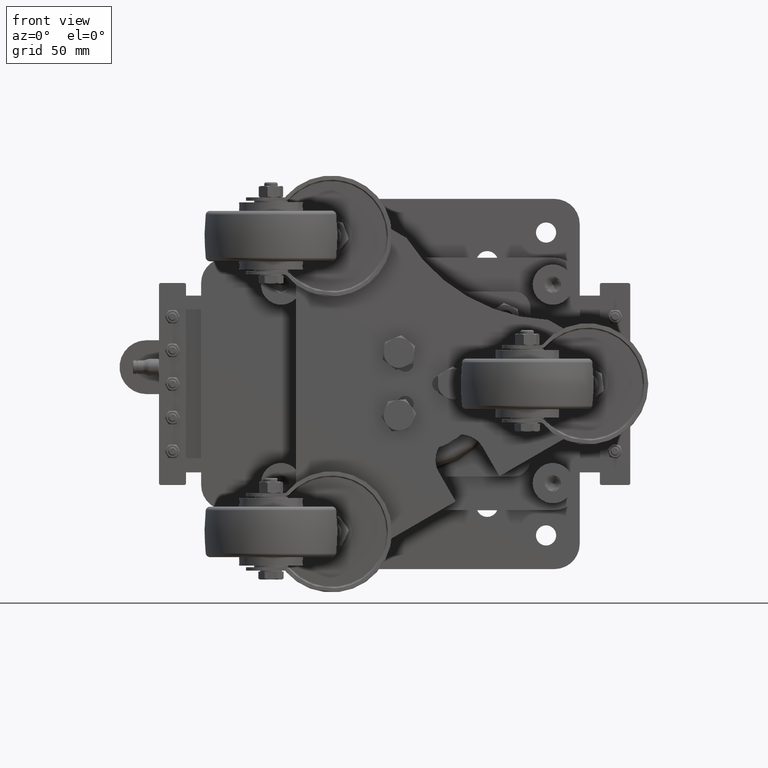
[diagram: clean part render]
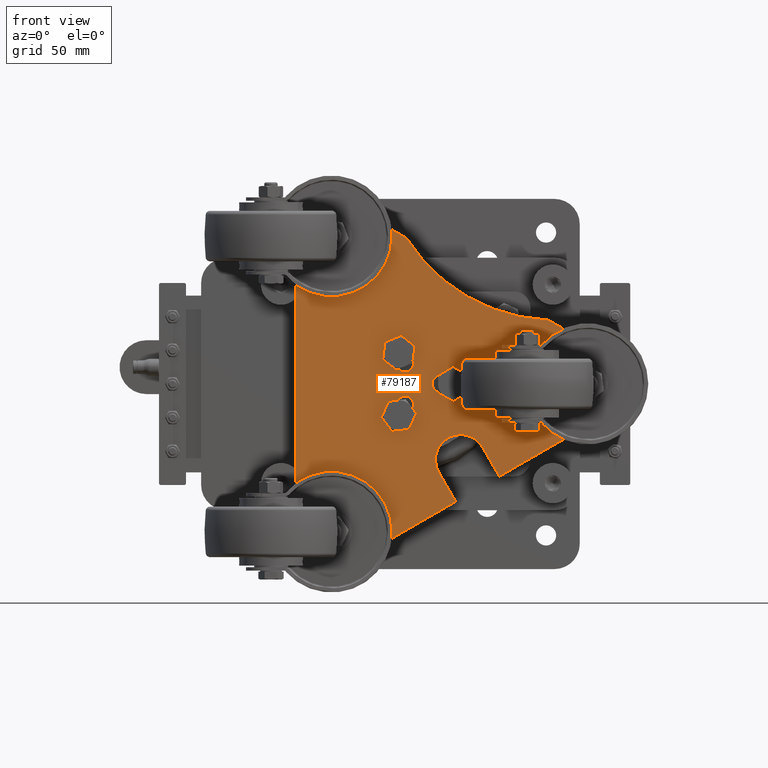
[diagram: same view with one face highlighted and labeled with its STEP entity id]
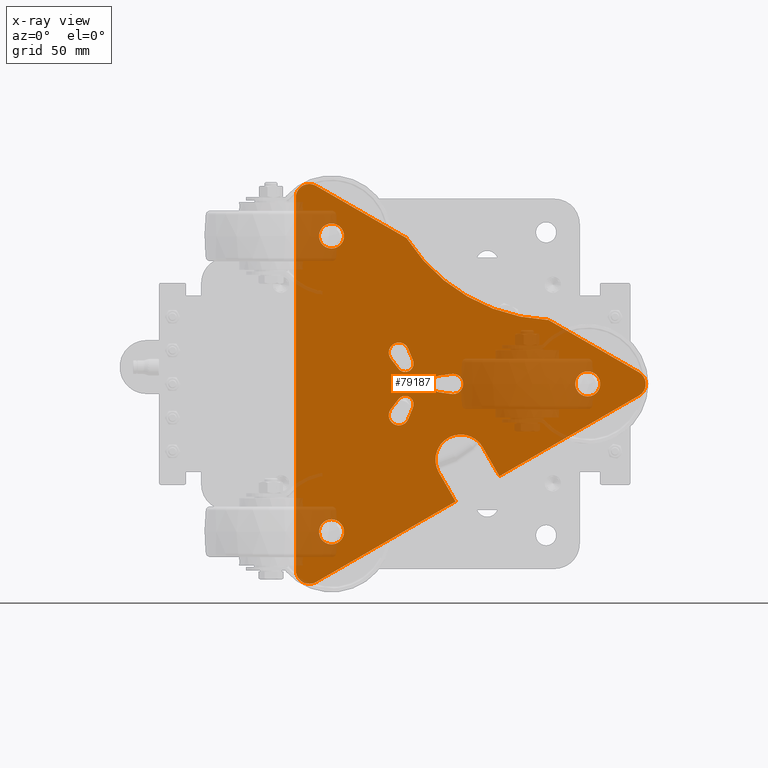
[diagram: x-ray of the same camera — body ghosted, the highlighted face saturated]
A machine part, front view. The second image highlights one B-rep face of the part: STEP entity #79187.
The next image is the same camera in x-ray: the body ghosted, the highlighted face saturated — about 18% of this face is hidden behind the body in this view.
In plain terms, the highlighted planar face has unit normal (0, -1, 0).
Its self-contained STEP definition (entity closure, byte-faithful):
#935 = EDGE_CURVE ( 'NONE', #26748, #115552, #35447, .T. ) ;
#1041 = ORIENTED_EDGE ( 'NONE', *, *, #27633, .T. ) ;
#1310 = EDGE_CURVE ( 'NONE', #3926, #15182, #39911, .T. ) ;
#1317 = VECTOR ( 'NONE', #66118, 1000.000000000000000 ) ;
#1602 = CARTESIAN_POINT ( 'NONE',  ( -5.200242724166355579, -49.00000000000004263, 20.89993960780172344 ) ) ;
#1637 = CARTESIAN_POINT ( 'NONE',  ( -15.49975727583331420, -49.00000000000004263, 14.95351210887427840 ) ) ;
#1715 = EDGE_CURVE ( 'NONE', #103441, #30753, #102189, .T. ) ;
#2066 = CIRCLE ( 'NONE', #76651, 8.000000000000007105 ) ;
#2222 = DIRECTION ( 'NONE',  ( 0.0000000000000000000, 0.0000000000000000000, 1.000000000000000000 ) ) ;
#2570 = CARTESIAN_POINT ( 'NONE',  ( 13.00961894323307355, -49.00000000000003553, -52.53332099679067824 ) ) ;
#2992 = CARTESIAN_POINT ( 'NONE',  ( 20.70000000000025508, -49.00000000000003553, 5.946427498927556066 ) ) ;
#3066 = DIRECTION ( 'NONE',  ( -1.396386934935779284E-16, 1.000000000000000000, -4.930380657631323784E-32 ) ) ;
#3635 = CIRCLE ( 'NONE', #81167, 6.000000000000000000 ) ;
#3779 = CARTESIAN_POINT ( 'NONE',  ( -2.375202270138549121, -49.00000000000003553, 14.02468350834576150 ) ) ;
#3795 = EDGE_CURVE ( 'NONE', #40222, #97572, #22285, .T. ) ;
#3926 = VERTEX_POINT ( 'NONE', #45308 ) ;
#4012 = CARTESIAN_POINT ( 'NONE',  ( 48.99038105676643085, -49.00000000000002842, -54.85382907247941375 ) ) ;
#4091 = CARTESIAN_POINT ( 'NONE',  ( 101.5000000000002984, -49.00000000000002132, 7.440000000000138058 ) ) ;
#4795 = ORIENTED_EDGE ( 'NONE', *, *, #15781, .T. ) ;
#4803 = VERTEX_POINT ( 'NONE', #97327 ) ;
#6358 = CARTESIAN_POINT ( 'NONE',  ( 101.5000000000002984, -49.00000000000002132, -7.439999999999841407 ) ) ;
#7957 = ORIENTED_EDGE ( 'NONE', *, *, #115756, .T. ) ;
#8012 = AXIS2_PLACEMENT_3D ( 'NONE', #19329, #110320, #49450 ) ;
#9335 = CARTESIAN_POINT ( 'NONE',  ( 14.00000000000026468, -49.00000000000003553, 1.480561238629936100E-13 ) ) ;
#9660 = VERTEX_POINT ( 'NONE', #61014 ) ;
#9750 = EDGE_CURVE ( 'NONE', #46459, #120438, #48055, .T. ) ;
#9786 = AXIS2_PLACEMENT_3D ( 'NONE', #18899, #88908, #129161 ) ;
#10928 = EDGE_LOOP ( 'NONE', ( #53872, #117290 ) ) ;
#11357 = AXIS2_PLACEMENT_3D ( 'NONE', #9335, #129618, #59083 ) ;
#11637 = EDGE_LOOP ( 'NONE', ( #125278, #84795 ) ) ;
#12159 = CARTESIAN_POINT ( 'NONE',  ( 48.99038105676643085, -49.00000000000002842, -54.85382907247941375 ) ) ;
#12991 = CARTESIAN_POINT ( 'NONE',  ( -5.200242724166366237, -49.00000000000004263, -20.89993960780141791 ) ) ;
#13321 = VECTOR ( 'NONE', #70054, 1000.000000000000114 ) ;
#13625 = CARTESIAN_POINT ( 'NONE',  ( -72.00000000000027001, -49.00000000000004974, -110.8512516844077140 ) ) ;
#14723 = EDGE_CURVE ( 'NONE', #38836, #35823, #79465, .T. ) ;
#14930 = VERTEX_POINT ( 'NONE', #56593 ) ;
#15001 = DIRECTION ( 'NONE',  ( 0.0000000000000000000, 0.0000000000000000000, -1.000000000000000000 ) ) ;
#15088 = DIRECTION ( 'NONE',  ( -1.396386934935779284E-16, 1.000000000000000000, -4.930380657631323784E-32 ) ) ;
#15182 = VERTEX_POINT ( 'NONE', #113920 ) ;
#15299 = EDGE_CURVE ( 'NONE', #55290, #34352, #108859, .T. ) ;
#15301 = AXIS2_PLACEMENT_3D ( 'NONE', #80580, #62125, #2222 ) ;
#15595 = DIRECTION ( 'NONE',  ( 0.0000000000000000000, 0.0000000000000000000, -1.000000000000000000 ) ) ;
#15781 = EDGE_CURVE ( 'NONE', #27668, #26277, #53597, .T. ) ;
#16274 = ORIENTED_EDGE ( 'NONE', *, *, #51782, .F. ) ;
#16406 = ORIENTED_EDGE ( 'NONE', *, *, #26632, .T. ) ;
#16418 = VECTOR ( 'NONE', #120562, 1000.000000000000114 ) ;
#16780 = DIRECTION ( 'NONE',  ( 0.0000000000000000000, 0.0000000000000000000, -1.000000000000000000 ) ) ;
#17087 = VERTEX_POINT ( 'NONE', #74072 ) ;
#17640 = ORIENTED_EDGE ( 'NONE', *, *, #114801, .F. ) ;
#17765 = AXIS2_PLACEMENT_3D ( 'NONE', #27124, #37152, #127293 ) ;
#18459 = CIRCLE ( 'NONE', #15301, 8.000000000000007105 ) ;
#18548 = VERTEX_POINT ( 'NONE', #1637 ) ;
#18899 = CARTESIAN_POINT ( 'NONE',  ( 26.00000000000000711, -49.00000000000003553, -45.03332099679050060 ) ) ;
#19266 = VERTEX_POINT ( 'NONE', #45574 ) ;
#19270 = CARTESIAN_POINT ( 'NONE',  ( -60.00000000000029843, -49.00000000000004974, 117.7794549146835550 ) ) ;
#19324 = EDGE_CURVE ( 'NONE', #59069, #27668, #34686, .T. ) ;
#19329 = CARTESIAN_POINT ( 'NONE',  ( 82.49999999999994316, -49.00000000000002842, 142.8941916244327217 ) ) ;
#20420 = LINE ( 'NONE', #31582, #97134 ) ;
#20438 = EDGE_CURVE ( 'NONE', #108504, #128862, #45891, .T. ) ;
#20768 = ORIENTED_EDGE ( 'NONE', *, *, #45888, .T. ) ;
#21024 = CIRCLE ( 'NONE', #118225, 5.999999999999987566 ) ;
#21155 = LINE ( 'NONE', #70773, #69736 ) ;
#21325 = CARTESIAN_POINT ( 'NONE',  ( -50.75000000000018474, -49.00000000000004263, -87.90157848412013664 ) ) ;
#21497 = EDGE_CURVE ( 'NONE', #26277, #4803, #112556, .T. ) ;
#21545 = AXIS2_PLACEMENT_3D ( 'NONE', #104087, #86112, #125491 ) ;
#21722 = CIRCLE ( 'NONE', #122151, 5.000000000000023093 ) ;
#21835 = LINE ( 'NONE', #12991, #106384 ) ;
#22285 = CIRCLE ( 'NONE', #62424, 7.440000000000002167 ) ;
#26120 = VECTOR ( 'NONE', #92601, 1000.000000000000000 ) ;
#26277 = VERTEX_POINT ( 'NONE', #96326 ) ;
#26632 = EDGE_CURVE ( 'NONE', #30753, #59069, #84143, .T. ) ;
#26748 = VERTEX_POINT ( 'NONE', #65561 ) ;
#27124 = CARTESIAN_POINT ( 'NONE',  ( -10.74999999999982947, -49.00000000000004263, 18.61954618136553563 ) ) ;
#27633 = EDGE_CURVE ( 'NONE', #4803, #103441, #33813, .T. ) ;
#27668 = VERTEX_POINT ( 'NONE', #33189 ) ;
#28589 = ORIENTED_EDGE ( 'NONE', *, *, #935, .T. ) ;
#28916 = CARTESIAN_POINT ( 'NONE',  ( 128.0000000000002842, -49.00000000000002132, 1.480561238629936100E-13 ) ) ;
#29332 = EDGE_CURVE ( 'NONE', #97572, #40222, #55615, .T. ) ;
#29931 = FACE_BOUND ( 'NONE', #69841, .T. ) ;
#30164 = DIRECTION ( 'NONE',  ( 0.0000000000000000000, 0.0000000000000000000, 1.000000000000000000 ) ) ;
#30753 = VERTEX_POINT ( 'NONE', #50811 ) ;
#31582 = CARTESIAN_POINT ( 'NONE',  ( 13.00961894323307533, -49.00000000000003553, -52.53332099679067113 ) ) ;
#32746 = DIRECTION ( 'NONE',  ( 0.0000000000000000000, 0.0000000000000000000, -1.000000000000000000 ) ) ;
#32933 = DIRECTION ( 'NONE',  ( 0.6110056787485430574, 8.532003469760415462E-17, 0.7916262126389146392 ) ) ;
#33133 = CIRCLE ( 'NONE', #9786, 15.00000000000038725 ) ;
#33189 = CARTESIAN_POINT ( 'NONE',  ( 20.70000000000025508, -49.00000000000003553, -5.946427498927259414 ) ) ;
#33736 = CARTESIAN_POINT ( 'NONE',  ( 26.00000000000000711, -49.00000000000003553, -45.03332099679050060 ) ) ;
#33813 = LINE ( 'NONE', #2992, #85415 ) ;
#34352 = VERTEX_POINT ( 'NONE', #92771 ) ;
#34402 = AXIS2_PLACEMENT_3D ( 'NONE', #47707, #126958, #57692 ) ;
#34686 = CIRCLE ( 'NONE', #34402, 6.000000000000006217 ) ;
#35447 = LINE ( 'NONE', #54222, #129347 ) ;
#35630 = EDGE_CURVE ( 'NONE', #35823, #63884, #33133, .T. ) ;
#35823 = VERTEX_POINT ( 'NONE', #101622 ) ;
#36199 = EDGE_CURVE ( 'NONE', #14930, #50432, #40656, .T. ) ;
#36775 = ORIENTED_EDGE ( 'NONE', *, *, #125569, .F. ) ;
#37152 = DIRECTION ( 'NONE',  ( -1.396386934935779284E-16, 1.000000000000000000, -4.930380657631323784E-32 ) ) ;
#37255 = VERTEX_POINT ( 'NONE', #2570 ) ;
#37531 = VECTOR ( 'NONE', #109416, 1000.000000000000114 ) ;
#38836 = VERTEX_POINT ( 'NONE', #4012 ) ;
#39380 = DIRECTION ( 'NONE',  ( 0.0000000000000000000, 0.0000000000000000000, 1.000000000000000000 ) ) ;
#39655 = CARTESIAN_POINT ( 'NONE',  ( 132.0000000000002558, -49.00000000000002132, -6.928203230275360447 ) ) ;
#39911 = CIRCLE ( 'NONE', #42690, 7.439999999999987956 ) ;
#40222 = VERTEX_POINT ( 'NONE', #43336 ) ;
#40231 = CARTESIAN_POINT ( 'NONE',  ( -50.75000000000017053, -49.00000000000004263, 87.90157848412046349 ) ) ;
#40656 = LINE ( 'NONE', #19270, #37531 ) ;
#41040 = EDGE_LOOP ( 'NONE', ( #54424, #106931 ) ) ;
#41957 = DIRECTION ( 'NONE',  ( 1.396386934935779284E-16, -1.000000000000000000, 4.930380657631323784E-32 ) ) ;
#42327 = DIRECTION ( 'NONE',  ( -0.4999999999999740208, -6.981934674678600596E-17, 0.8660254037844536956 ) ) ;
#42690 = AXIS2_PLACEMENT_3D ( 'NONE', #40231, #41957, #123339 ) ;
#43336 = CARTESIAN_POINT ( 'NONE',  ( -50.75000000000018474, -49.00000000000004263, -95.34157848412013436 ) ) ;
#43380 = CARTESIAN_POINT ( 'NONE',  ( -72.00000000000028422, -49.00000000000004974, 110.8512516844080409 ) ) ;
#43597 = DIRECTION ( 'NONE',  ( 0.0000000000000000000, 0.0000000000000000000, -1.000000000000000000 ) ) ;
#43767 = DIRECTION ( 'NONE',  ( 0.0000000000000000000, 0.0000000000000000000, -1.000000000000000000 ) ) ;
#43822 = EDGE_CURVE ( 'NONE', #34352, #17087, #21835, .T. ) ;
#43852 = AXIS2_PLACEMENT_3D ( 'NONE', #33736, #103728, #43767 ) ;
#43938 = VERTEX_POINT ( 'NONE', #114449 ) ;
#45308 = CARTESIAN_POINT ( 'NONE',  ( -50.75000000000017053, -49.00000000000004263, 80.46157848412046576 ) ) ;
#45574 = CARTESIAN_POINT ( 'NONE',  ( -10.95813106319439179, -49.00000000000004263, 9.069327259239527095 ) ) ;
#45888 = EDGE_CURVE ( 'NONE', #18548, #9660, #3635, .T. ) ;
#45891 = CIRCLE ( 'NONE', #83190, 7.999999999999988454 ) ;
#46180 = CIRCLE ( 'NONE', #121751, 5.000000000000013323 ) ;
#46459 = VERTEX_POINT ( 'NONE', #6358 ) ;
#46677 = LINE ( 'NONE', #55914, #1317 ) ;
#47707 = CARTESIAN_POINT ( 'NONE',  ( 21.50000000000026290, -49.00000000000003553, 1.480561238629936100E-13 ) ) ;
#48055 = CIRCLE ( 'NONE', #111332, 7.439999999999991509 ) ;
#48380 = EDGE_CURVE ( 'NONE', #73102, #108504, #66516, .T. ) ;
#48880 = ORIENTED_EDGE ( 'NONE', *, *, #116720, .T. ) ;
#49450 = DIRECTION ( 'NONE',  ( 0.0000000000000000000, 0.0000000000000000000, -1.000000000000000000 ) ) ;
#49489 = LINE ( 'NONE', #3779, #26120 ) ;
#50432 = VERTEX_POINT ( 'NONE', #60524 ) ;
#50646 = DIRECTION ( 'NONE',  ( 1.396386934935779284E-16, -1.000000000000000000, 4.930380657631323784E-32 ) ) ;
#50811 = CARTESIAN_POINT ( 'NONE',  ( 21.50000000000026290, -49.00000000000003553, 6.000000000000152767 ) ) ;
#50854 = DIRECTION ( 'NONE',  ( 0.0000000000000000000, 0.0000000000000000000, -1.000000000000000000 ) ) ;
#51702 = FACE_BOUND ( 'NONE', #41040, .T. ) ;
#51782 = EDGE_CURVE ( 'NONE', #128862, #38836, #124773, .T. ) ;
#52678 = DIRECTION ( 'NONE',  ( 1.396386934935779284E-16, -1.000000000000000000, 4.930380657631323784E-32 ) ) ;
#52814 = CARTESIAN_POINT ( 'NONE',  ( -6.999999999999798383, -49.00000000000004263, 12.12435565298225981 ) ) ;
#52844 = PLANE ( 'NONE',  #43852 ) ;
#53455 = DIRECTION ( 'NONE',  ( 1.396386934935779284E-16, -1.000000000000000000, 4.930380657631323784E-32 ) ) ;
#53597 = LINE ( 'NONE', #127597, #100663 ) ;
#53872 = ORIENTED_EDGE ( 'NONE', *, *, #79496, .F. ) ;
#54222 = CARTESIAN_POINT ( 'NONE',  ( -10.95813106319438113, -49.00000000000004263, -9.069327259239235772 ) ) ;
#54424 = ORIENTED_EDGE ( 'NONE', *, *, #29332, .F. ) ;
#55290 = VERTEX_POINT ( 'NONE', #57315 ) ;
#55615 = CIRCLE ( 'NONE', #114268, 7.440000000000002167 ) ;
#55873 = CARTESIAN_POINT ( 'NONE',  ( -64.00000000000028422, -49.00000000000004974, 118.8512516844080551 ) ) ;
#55914 = CARTESIAN_POINT ( 'NONE',  ( -15.49975727583331953, -49.00000000000004263, 14.95351210887427484 ) ) ;
#56593 = CARTESIAN_POINT ( 'NONE',  ( -60.00000000000029843, -49.00000000000004974, 117.7794549146835550 ) ) ;
#57315 = CARTESIAN_POINT ( 'NONE',  ( -6.999999999999800160, -49.00000000000004263, -7.124355652981948950 ) ) ;
#57692 = DIRECTION ( 'NONE',  ( 0.0000000000000000000, 0.0000000000000000000, -1.000000000000000000 ) ) ;
#58545 = EDGE_CURVE ( 'NONE', #15182, #3926, #92199, .T. ) ;
#58750 = EDGE_LOOP ( 'NONE', ( #80201, #16406, #105087, #4795, #108539, #1041 ) ) ;
#59001 = VECTOR ( 'NONE', #42327, 999.9999999999998863 ) ;
#59069 = VERTEX_POINT ( 'NONE', #83315 ) ;
#59083 = DIRECTION ( 'NONE',  ( 0.0000000000000000000, 0.0000000000000000000, -1.000000000000000000 ) ) ;
#59264 = ORIENTED_EDGE ( 'NONE', *, *, #36199, .F. ) ;
#59974 = CARTESIAN_POINT ( 'NONE',  ( -2.375202270138549121, -49.00000000000003553, 14.02468350834576150 ) ) ;
#60250 = AXIS2_PLACEMENT_3D ( 'NONE', #101332, #121043, #43597 ) ;
#60306 = CARTESIAN_POINT ( 'NONE',  ( -64.00000000000028422, -49.00000000000004974, 110.8512516844080409 ) ) ;
#60470 = EDGE_CURVE ( 'NONE', #63884, #37255, #107603, .T. ) ;
#60524 = CARTESIAN_POINT ( 'NONE',  ( -6.213741838408668450, -49.00000000000004263, 86.72594428638609543 ) ) ;
#60950 = DIRECTION ( 'NONE',  ( 1.396386934935779284E-16, -1.000000000000000000, 4.930380657631323784E-32 ) ) ;
#61014 = CARTESIAN_POINT ( 'NONE',  ( -10.74999999999982947, -49.00000000000004263, 24.61954618136553208 ) ) ;
#62125 = DIRECTION ( 'NONE',  ( -1.396386934935779284E-16, 1.000000000000000000, -4.930380657631323784E-32 ) ) ;
#62424 = AXIS2_PLACEMENT_3D ( 'NONE', #21325, #52678, #81695 ) ;
#62766 = CARTESIAN_POINT ( 'NONE',  ( 101.5000000000002984, -49.00000000000002132, 1.480561238629936100E-13 ) ) ;
#63355 = DIRECTION ( 'NONE',  ( 0.0000000000000000000, 0.0000000000000000000, -1.000000000000000000 ) ) ;
#63721 = ORIENTED_EDGE ( 'NONE', *, *, #90829, .F. ) ;
#63884 = VERTEX_POINT ( 'NONE', #127008 ) ;
#64334 = FACE_BOUND ( 'NONE', #58750, .T. ) ;
#64872 = DIRECTION ( 'NONE',  ( -1.396386934935779284E-16, 1.000000000000000000, -4.930380657631323784E-32 ) ) ;
#65561 = CARTESIAN_POINT ( 'NONE',  ( -15.49975727583330709, -49.00000000000004263, -14.95351210887398175 ) ) ;
#66118 = DIRECTION ( 'NONE',  ( -0.6110056787485430574, -8.532003469760415462E-17, 0.7916262126389146392 ) ) ;
#66516 = LINE ( 'NONE', #99805, #13321 ) ;
#69322 = ORIENTED_EDGE ( 'NONE', *, *, #74358, .F. ) ;
#69476 = ORIENTED_EDGE ( 'NONE', *, *, #103646, .T. ) ;
#69505 = DIRECTION ( 'NONE',  ( -6.259644161404848197E-17, -8.740885324332845437E-33, 1.000000000000000000 ) ) ;
#69557 = DIRECTION ( 'NONE',  ( 0.0000000000000000000, 0.0000000000000000000, -1.000000000000000000 ) ) ;
#69736 = VECTOR ( 'NONE', #69505, 1000.000000000000000 ) ;
#69841 = EDGE_LOOP ( 'NONE', ( #112924, #107933, #111303, #48880, #28589 ) ) ;
#70054 = DIRECTION ( 'NONE',  ( 0.8660254037844395958, 1.209306559167085651E-16, -0.4999999999999983347 ) ) ;
#70681 = AXIS2_PLACEMENT_3D ( 'NONE', #80052, #50646, #69557 ) ;
#70773 = CARTESIAN_POINT ( 'NONE',  ( -72.00000000000027001, -49.00000000000004974, -110.8512516844077140 ) ) ;
#71701 = ORIENTED_EDGE ( 'NONE', *, *, #20438, .F. ) ;
#72828 = DIRECTION ( 'NONE',  ( 0.0000000000000000000, 0.0000000000000000000, -1.000000000000000000 ) ) ;
#73102 = VERTEX_POINT ( 'NONE', #112886 ) ;
#73829 = AXIS2_PLACEMENT_3D ( 'NONE', #121603, #92717, #32746 ) ;
#74072 = CARTESIAN_POINT ( 'NONE',  ( -5.200242724166362684, -49.00000000000004263, -20.89993960780142146 ) ) ;
#74358 = EDGE_CURVE ( 'NONE', #93477, #76233, #21155, .T. ) ;
#75015 = CARTESIAN_POINT ( 'NONE',  ( -10.74999999999983125, -49.00000000000004263, -18.61954618136523010 ) ) ;
#75182 = ORIENTED_EDGE ( 'NONE', *, *, #93913, .T. ) ;
#76233 = VERTEX_POINT ( 'NONE', #43380 ) ;
#76404 = CARTESIAN_POINT ( 'NONE',  ( -60.00000000000031974, -49.00000000000004974, -117.7794549146832139 ) ) ;
#76651 = AXIS2_PLACEMENT_3D ( 'NONE', #60306, #99331, #129531 ) ;
#79187 = ADVANCED_FACE ( 'NONE', ( #117581, #51702, #89461, #64334, #29931, #123862, #106723 ), #52844, .T. ) ;
#79249 = DIRECTION ( 'NONE',  ( -1.396386934935779284E-16, 1.000000000000000000, -4.930380657631323784E-32 ) ) ;
#79462 = CIRCLE ( 'NONE', #83248, 7.999999999999979572 ) ;
#79465 = LINE ( 'NONE', #12159, #59001 ) ;
#79496 = EDGE_CURVE ( 'NONE', #120438, #46459, #89715, .T. ) ;
#80052 = CARTESIAN_POINT ( 'NONE',  ( 101.5000000000002984, -49.00000000000002132, 1.480561238629936100E-13 ) ) ;
#80114 = CARTESIAN_POINT ( 'NONE',  ( -64.00000000000029843, -49.00000000000004974, -110.8512516844077140 ) ) ;
#80201 = ORIENTED_EDGE ( 'NONE', *, *, #1715, .T. ) ;
#80580 = CARTESIAN_POINT ( 'NONE',  ( -64.00000000000028422, -49.00000000000004974, 110.8512516844080409 ) ) ;
#81093 = CARTESIAN_POINT ( 'NONE',  ( -10.95813106319438113, -49.00000000000004263, -9.069327259239235772 ) ) ;
#81167 = AXIS2_PLACEMENT_3D ( 'NONE', #104271, #64872, #15001 ) ;
#81695 = DIRECTION ( 'NONE',  ( 0.0000000000000000000, 0.0000000000000000000, -1.000000000000000000 ) ) ;
#83068 = DIRECTION ( 'NONE',  ( 0.0000000000000000000, 0.0000000000000000000, -1.000000000000000000 ) ) ;
#83190 = AXIS2_PLACEMENT_3D ( 'NONE', #28916, #119484, #30164 ) ;
#83248 = AXIS2_PLACEMENT_3D ( 'NONE', #80114, #79249, #39380 ) ;
#83315 = CARTESIAN_POINT ( 'NONE',  ( 21.50000000000026290, -49.00000000000003553, -5.999999999999856115 ) ) ;
#83359 = DIRECTION ( 'NONE',  ( -0.3800655710726995595, -5.307185978648285504E-17, -0.9249595459722456114 ) ) ;
#83368 = VERTEX_POINT ( 'NONE', #59974 ) ;
#84143 = CIRCLE ( 'NONE', #117144, 6.000000000000006217 ) ;
#84795 = ORIENTED_EDGE ( 'NONE', *, *, #1310, .F. ) ;
#85415 = VECTOR ( 'NONE', #114093, 1000.000000000000114 ) ;
#85911 = DIRECTION ( 'NONE',  ( -1.396386934935779284E-16, 1.000000000000000000, -4.930380657631323784E-32 ) ) ;
#86112 = DIRECTION ( 'NONE',  ( 1.396386934935779284E-16, -1.000000000000000000, 4.930380657631323784E-32 ) ) ;
#86173 = CARTESIAN_POINT ( 'NONE',  ( -50.75000000000018474, -49.00000000000004263, -80.46157848412015312 ) ) ;
#86481 = EDGE_CURVE ( 'NONE', #9660, #104348, #99057, .T. ) ;
#87217 = AXIS2_PLACEMENT_3D ( 'NONE', #103003, #85911, #16780 ) ;
#87561 = EDGE_CURVE ( 'NONE', #114631, #93477, #79462, .T. ) ;
#88634 = DIRECTION ( 'NONE',  ( -0.9910712498212336241, -1.383918944840857524E-16, 0.1333333333333338588 ) ) ;
#88755 = VECTOR ( 'NONE', #96823, 1000.000000000000114 ) ;
#88908 = DIRECTION ( 'NONE',  ( 1.396386934935779284E-16, -1.000000000000000000, 4.930380657631323784E-32 ) ) ;
#89461 = FACE_BOUND ( 'NONE', #11637, .T. ) ;
#89715 = CIRCLE ( 'NONE', #70681, 7.439999999999991509 ) ;
#90829 = EDGE_CURVE ( 'NONE', #76233, #113143, #18459, .T. ) ;
#91650 = CARTESIAN_POINT ( 'NONE',  ( -50.75000000000018474, -49.00000000000004263, -87.90157848412013664 ) ) ;
#92199 = CIRCLE ( 'NONE', #21545, 7.439999999999987956 ) ;
#92601 = DIRECTION ( 'NONE',  ( 0.3800655710726988934, 5.307185978648276259E-17, -0.9249595459722459445 ) ) ;
#92717 = DIRECTION ( 'NONE',  ( 1.396386934935779284E-16, -1.000000000000000000, 4.930380657631323784E-32 ) ) ;
#92736 = CIRCLE ( 'NONE', #8012, 104.9999999999990337 ) ;
#92771 = CARTESIAN_POINT ( 'NONE',  ( -2.375202270138556671, -49.00000000000003553, -14.02468350834546484 ) ) ;
#93477 = VERTEX_POINT ( 'NONE', #13625 ) ;
#93913 = EDGE_CURVE ( 'NONE', #104348, #83368, #49489, .T. ) ;
#94795 = CARTESIAN_POINT ( 'NONE',  ( -6.999999999999800160, -49.00000000000004263, -12.12435565298196138 ) ) ;
#94922 = ORIENTED_EDGE ( 'NONE', *, *, #97178, .F. ) ;
#96088 = DIRECTION ( 'NONE',  ( -1.396386934935779284E-16, 1.000000000000000000, -4.930380657631323784E-32 ) ) ;
#96255 = EDGE_LOOP ( 'NONE', ( #69476, #7957, #20768, #99556, #75182 ) ) ;
#96326 = CARTESIAN_POINT ( 'NONE',  ( 13.33333333333358972, -49.00000000000003553, -4.955356249106016797 ) ) ;
#96823 = DIRECTION ( 'NONE',  ( -0.8660254037844398178, -1.209306559167085897E-16, -0.4999999999999978906 ) ) ;
#97134 = VECTOR ( 'NONE', #121299, 1000.000000000000000 ) ;
#97178 = EDGE_CURVE ( 'NONE', #50432, #73102, #92736, .T. ) ;
#97327 = CARTESIAN_POINT ( 'NONE',  ( 13.33333333333359505, -49.00000000000003553, 4.955356249106317890 ) ) ;
#97572 = VERTEX_POINT ( 'NONE', #86173 ) ;
#97915 = ORIENTED_EDGE ( 'NONE', *, *, #35630, .F. ) ;
#99057 = CIRCLE ( 'NONE', #17765, 6.000000000000000000 ) ;
#99331 = DIRECTION ( 'NONE',  ( -1.396386934935779284E-16, 1.000000000000000000, -4.930380657631323784E-32 ) ) ;
#99556 = ORIENTED_EDGE ( 'NONE', *, *, #86481, .T. ) ;
#99805 = CARTESIAN_POINT ( 'NONE',  ( 78.21374183840868000, -49.00000000000002842, 37.98171385857312998 ) ) ;
#100663 = VECTOR ( 'NONE', #88634, 1000.000000000000114 ) ;
#101332 = CARTESIAN_POINT ( 'NONE',  ( 21.50000000000026290, -49.00000000000003553, 1.480561238629936100E-13 ) ) ;
#101622 = CARTESIAN_POINT ( 'NONE',  ( 38.99038105676692822, -49.00000000000003553, -37.53332099679030165 ) ) ;
#101737 = EDGE_CURVE ( 'NONE', #115552, #55290, #46180, .T. ) ;
#102189 = CIRCLE ( 'NONE', #60250, 6.000000000000006217 ) ;
#103003 = CARTESIAN_POINT ( 'NONE',  ( -6.999999999999800160, -49.00000000000004263, -12.12435565298196138 ) ) ;
#103157 = CARTESIAN_POINT ( 'NONE',  ( 132.0000000000002558, -49.00000000000002132, 6.928203230275665092 ) ) ;
#103441 = VERTEX_POINT ( 'NONE', #129556 ) ;
#103646 = EDGE_CURVE ( 'NONE', #83368, #19266, #21722, .T. ) ;
#103728 = DIRECTION ( 'NONE',  ( 1.396386934935779284E-16, -1.000000000000000000, 0.0000000000000000000 ) ) ;
#104087 = CARTESIAN_POINT ( 'NONE',  ( -50.75000000000017053, -49.00000000000004263, 87.90157848412046349 ) ) ;
#104271 = CARTESIAN_POINT ( 'NONE',  ( -10.74999999999982947, -49.00000000000004263, 18.61954618136553563 ) ) ;
#104348 = VERTEX_POINT ( 'NONE', #1602 ) ;
#105087 = ORIENTED_EDGE ( 'NONE', *, *, #19324, .T. ) ;
#106384 = VECTOR ( 'NONE', #83359, 1000.000000000000000 ) ;
#106723 = FACE_OUTER_BOUND ( 'NONE', #111556, .T. ) ;
#106931 = ORIENTED_EDGE ( 'NONE', *, *, #3795, .F. ) ;
#107603 = CIRCLE ( 'NONE', #73829, 15.00000000000038725 ) ;
#107933 = ORIENTED_EDGE ( 'NONE', *, *, #15299, .T. ) ;
#108189 = CARTESIAN_POINT ( 'NONE',  ( 132.0000000000002558, -49.00000000000002132, -6.928203230275352453 ) ) ;
#108308 = CARTESIAN_POINT ( 'NONE',  ( 23.00961894323303625, -49.00000000000003553, -69.85382907247947060 ) ) ;
#108504 = VERTEX_POINT ( 'NONE', #103157 ) ;
#108539 = ORIENTED_EDGE ( 'NONE', *, *, #21497, .T. ) ;
#108859 = CIRCLE ( 'NONE', #87217, 5.000000000000013323 ) ;
#109416 = DIRECTION ( 'NONE',  ( 0.8660254037844398178, 1.209306559167085897E-16, -0.4999999999999977796 ) ) ;
#109819 = ORIENTED_EDGE ( 'NONE', *, *, #14723, .F. ) ;
#110320 = DIRECTION ( 'NONE',  ( 1.396386934935779284E-16, -1.000000000000000000, 4.930380657631323784E-32 ) ) ;
#111303 = ORIENTED_EDGE ( 'NONE', *, *, #43822, .T. ) ;
#111332 = AXIS2_PLACEMENT_3D ( 'NONE', #62766, #53455, #72828 ) ;
#111556 = EDGE_LOOP ( 'NONE', ( #16274, #71701, #115001, #94922, #59264, #113776, #63721, #69322, #118589, #17640, #36775, #121509, #97915, #109819 ) ) ;
#112556 = CIRCLE ( 'NONE', #11357, 5.000000000000001776 ) ;
#112886 = CARTESIAN_POINT ( 'NONE',  ( 78.21374183840862315, -49.00000000000002842, 37.98171385857311577 ) ) ;
#112924 = ORIENTED_EDGE ( 'NONE', *, *, #101737, .T. ) ;
#113143 = VERTEX_POINT ( 'NONE', #55873 ) ;
#113267 = CARTESIAN_POINT ( 'NONE',  ( 21.50000000000026290, -49.00000000000003553, 1.480561238629936100E-13 ) ) ;
#113776 = ORIENTED_EDGE ( 'NONE', *, *, #123406, .F. ) ;
#113920 = CARTESIAN_POINT ( 'NONE',  ( -50.75000000000017053, -49.00000000000004263, 95.34157848412044700 ) ) ;
#114093 = DIRECTION ( 'NONE',  ( 0.9910712498212336241, 1.383918944840857524E-16, 0.1333333333333338588 ) ) ;
#114268 = AXIS2_PLACEMENT_3D ( 'NONE', #91650, #60950, #50854 ) ;
#114449 = CARTESIAN_POINT ( 'NONE',  ( 23.00961894323303625, -49.00000000000003553, -69.85382907247947060 ) ) ;
#114631 = VERTEX_POINT ( 'NONE', #76404 ) ;
#114801 = EDGE_CURVE ( 'NONE', #43938, #114631, #119717, .T. ) ;
#115001 = ORIENTED_EDGE ( 'NONE', *, *, #48380, .F. ) ;
#115552 = VERTEX_POINT ( 'NONE', #81093 ) ;
#115756 = EDGE_CURVE ( 'NONE', #19266, #18548, #46677, .T. ) ;
#116131 = DIRECTION ( 'NONE',  ( 0.0000000000000000000, 0.0000000000000000000, -1.000000000000000000 ) ) ;
#116720 = EDGE_CURVE ( 'NONE', #17087, #26748, #21024, .T. ) ;
#117144 = AXIS2_PLACEMENT_3D ( 'NONE', #113267, #123314, #63355 ) ;
#117290 = ORIENTED_EDGE ( 'NONE', *, *, #9750, .F. ) ;
#117581 = FACE_BOUND ( 'NONE', #10928, .T. ) ;
#118225 = AXIS2_PLACEMENT_3D ( 'NONE', #75015, #15088, #116131 ) ;
#118589 = ORIENTED_EDGE ( 'NONE', *, *, #87561, .F. ) ;
#119484 = DIRECTION ( 'NONE',  ( -1.396386934935779284E-16, 1.000000000000000000, -4.930380657631323784E-32 ) ) ;
#119717 = LINE ( 'NONE', #108308, #16418 ) ;
#120438 = VERTEX_POINT ( 'NONE', #4091 ) ;
#120562 = DIRECTION ( 'NONE',  ( -0.8660254037844399289, -1.209306559167086144E-16, -0.4999999999999976130 ) ) ;
#121043 = DIRECTION ( 'NONE',  ( -1.396386934935779284E-16, 1.000000000000000000, -4.930380657631323784E-32 ) ) ;
#121299 = DIRECTION ( 'NONE',  ( 0.4999999999999977240, 6.981934674678930932E-17, -0.8660254037844399289 ) ) ;
#121509 = ORIENTED_EDGE ( 'NONE', *, *, #60470, .F. ) ;
#121603 = CARTESIAN_POINT ( 'NONE',  ( 26.00000000000000711, -49.00000000000003553, -45.03332099679050060 ) ) ;
#121751 = AXIS2_PLACEMENT_3D ( 'NONE', #94795, #96088, #15595 ) ;
#122151 = AXIS2_PLACEMENT_3D ( 'NONE', #52814, #3066, #83068 ) ;
#123314 = DIRECTION ( 'NONE',  ( -1.396386934935779284E-16, 1.000000000000000000, -4.930380657631323784E-32 ) ) ;
#123339 = DIRECTION ( 'NONE',  ( 0.0000000000000000000, 0.0000000000000000000, -1.000000000000000000 ) ) ;
#123406 = EDGE_CURVE ( 'NONE', #113143, #14930, #2066, .T. ) ;
#123862 = FACE_BOUND ( 'NONE', #96255, .T. ) ;
#124773 = LINE ( 'NONE', #108189, #88755 ) ;
#125278 = ORIENTED_EDGE ( 'NONE', *, *, #58545, .F. ) ;
#125491 = DIRECTION ( 'NONE',  ( 0.0000000000000000000, 0.0000000000000000000, -1.000000000000000000 ) ) ;
#125569 = EDGE_CURVE ( 'NONE', #37255, #43938, #20420, .T. ) ;
#126958 = DIRECTION ( 'NONE',  ( -1.396386934935779284E-16, 1.000000000000000000, -4.930380657631323784E-32 ) ) ;
#127008 = CARTESIAN_POINT ( 'NONE',  ( 26.00000000000000711, -49.00000000000003553, -30.03332099679010980 ) ) ;
#127293 = DIRECTION ( 'NONE',  ( 0.0000000000000000000, 0.0000000000000000000, -1.000000000000000000 ) ) ;
#127597 = CARTESIAN_POINT ( 'NONE',  ( 13.33333333333359505, -49.00000000000003553, -4.955356249106021238 ) ) ;
#128862 = VERTEX_POINT ( 'NONE', #39655 ) ;
#129161 = DIRECTION ( 'NONE',  ( 0.0000000000000000000, 0.0000000000000000000, -1.000000000000000000 ) ) ;
#129347 = VECTOR ( 'NONE', #32933, 1000.000000000000000 ) ;
#129531 = DIRECTION ( 'NONE',  ( 0.0000000000000000000, 0.0000000000000000000, 1.000000000000000000 ) ) ;
#129556 = CARTESIAN_POINT ( 'NONE',  ( 20.70000000000025508, -49.00000000000003553, 5.946427498927556066 ) ) ;
#129618 = DIRECTION ( 'NONE',  ( -1.396386934935779284E-16, 1.000000000000000000, -4.930380657631323784E-32 ) ) ;